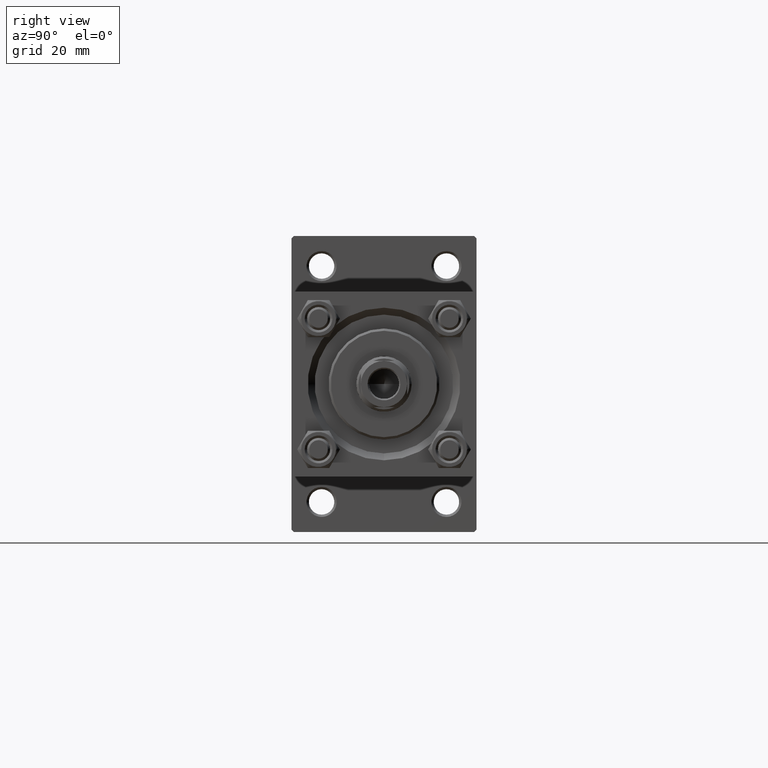
[diagram: clean part render]
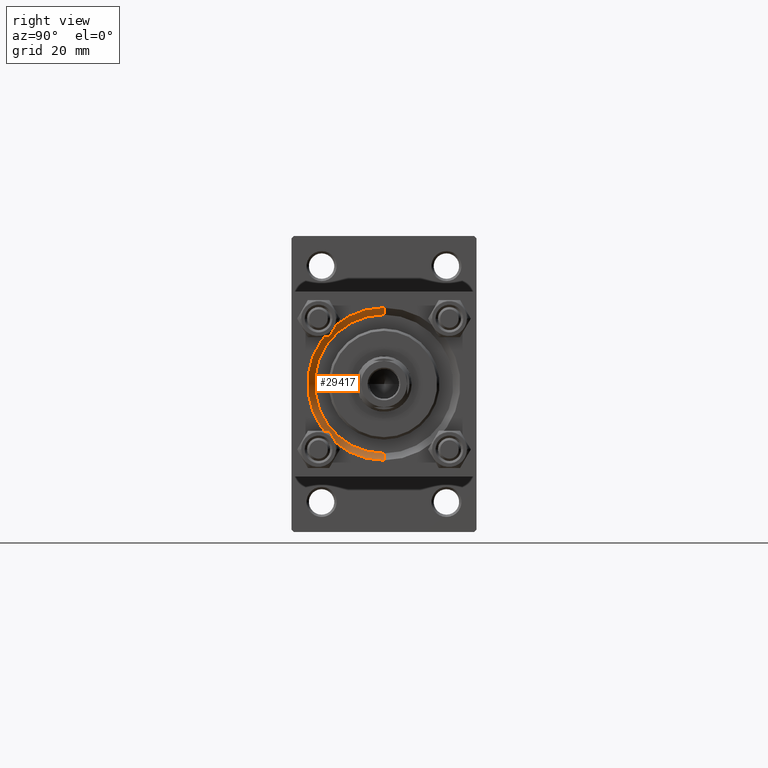
[diagram: same view with one face highlighted and labeled with its STEP entity id]
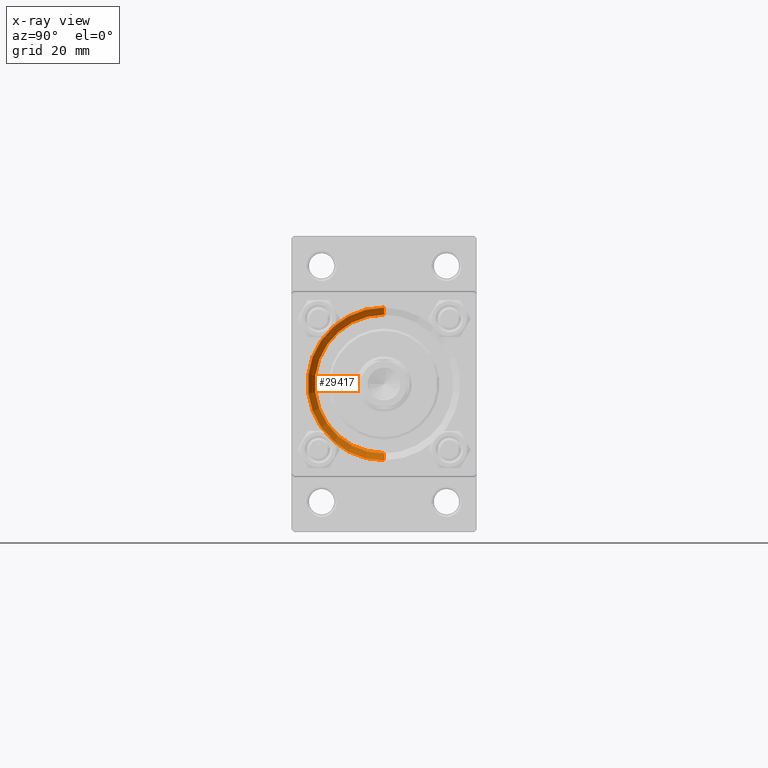
[diagram: x-ray of the same camera — body ghosted, the highlighted face saturated]
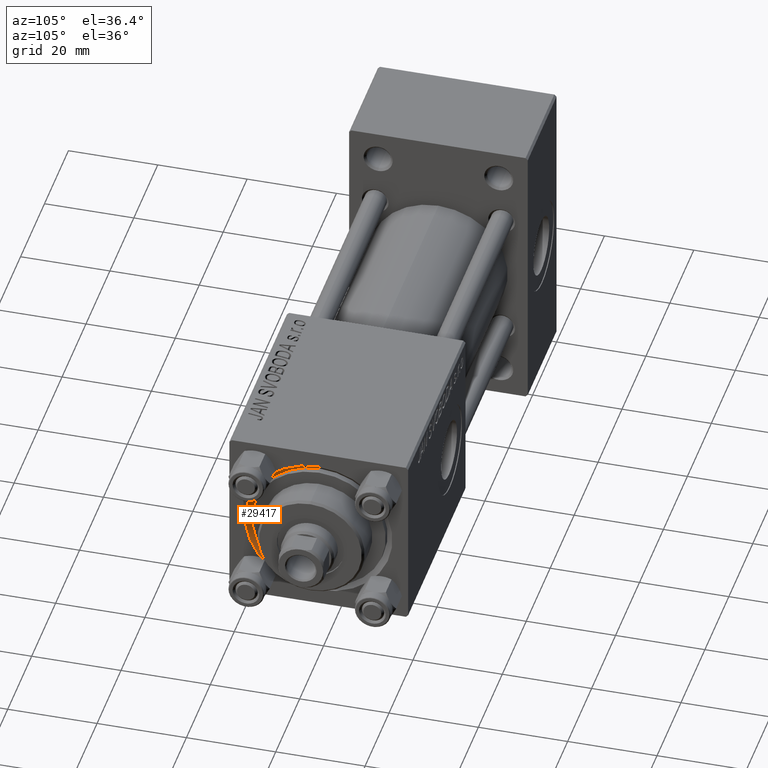
[diagram: same view with one face highlighted and labeled with its STEP entity id]
A machine part, right view. The second image highlights one B-rep face of the part: STEP entity #29417.
The next image is the same camera in x-ray: the body ghosted, the highlighted face saturated — about 0% of this face is hidden behind the body in this view.
A second angle (auxiliary view) of the same face is appended — the face is thin or edge-on in the first view.
In plain terms, the highlighted conical surface has half-angle 45 deg.
Its self-contained STEP definition (entity closure, byte-faithful):
#4661 = LINE ( 'NONE', #5165, #29906 ) ;
#5165 = CARTESIAN_POINT ( 'NONE',  ( 122.5000000000000000, 0.000000000000000000, -15.00000000000000000 ) ) ;
#7498 = VERTEX_POINT ( 'NONE', #7843 ) ;
#7843 = CARTESIAN_POINT ( 'NONE',  ( 122.5000000000000000, 1.836970198721029589E-15, 15.00000000000000000 ) ) ;
#7931 = FACE_OUTER_BOUND ( 'NONE', #8432, .T. ) ;
#8432 = EDGE_LOOP ( 'NONE', ( #33343, #33894, #37217, #16447 ) ) ;
#10028 = DIRECTION ( 'NONE',  ( 0.000000000000000000, 0.000000000000000000, -1.000000000000000000 ) ) ;
#11680 = DIRECTION ( 'NONE',  ( 1.000000000000000000, 0.000000000000000000, 0.000000000000000000 ) ) ;
#11727 = CARTESIAN_POINT ( 'NONE',  ( 122.5000000000000000, 0.000000000000000000, 0.000000000000000000 ) ) ;
#12030 = DIRECTION ( 'NONE',  ( 0.7071067811865507924, 8.659560562354892183E-17, 0.7071067811865441310 ) ) ;
#13325 = CARTESIAN_POINT ( 'NONE',  ( 124.0000000000000000, 0.000000000000000000, -16.49999999999998579 ) ) ;
#13739 = CIRCLE ( 'NONE', #41947, 15.00000000000000000 ) ;
#13962 = EDGE_CURVE ( 'NONE', #7498, #22268, #13739, .T. ) ;
#16447 = ORIENTED_EDGE ( 'NONE', *, *, #48648, .F. ) ;
#17389 = AXIS2_PLACEMENT_3D ( 'NONE', #11727, #34967, #10028 ) ;
#18998 = CARTESIAN_POINT ( 'NONE',  ( 122.5000000000000000, 0.000000000000000000, 0.000000000000000000 ) ) ;
#22268 = VERTEX_POINT ( 'NONE', #41607 ) ;
#22284 = DIRECTION ( 'NONE',  ( 0.000000000000000000, 0.000000000000000000, 1.000000000000000000 ) ) ;
#24995 = AXIS2_PLACEMENT_3D ( 'NONE', #35995, #27496, #27748 ) ;
#27435 = LINE ( 'NONE', #46618, #48352 ) ;
#27496 = DIRECTION ( 'NONE',  ( -1.000000000000000000, -0.000000000000000000, -0.000000000000000000 ) ) ;
#27748 = DIRECTION ( 'NONE',  ( 0.000000000000000000, 0.000000000000000000, 1.000000000000000000 ) ) ;
#29417 = ADVANCED_FACE ( 'NONE', ( #7931 ), #45592, .F. ) ;
#29906 = VECTOR ( 'NONE', #35985, 1000.000000000000114 ) ;
#33343 = ORIENTED_EDGE ( 'NONE', *, *, #13962, .F. ) ;
#33894 = ORIENTED_EDGE ( 'NONE', *, *, #47291, .T. ) ;
#34967 = DIRECTION ( 'NONE',  ( 1.000000000000000000, 0.000000000000000000, 0.000000000000000000 ) ) ;
#35985 = DIRECTION ( 'NONE',  ( 0.7071067811865507924, 0.000000000000000000, -0.7071067811865441310 ) ) ;
#35995 = CARTESIAN_POINT ( 'NONE',  ( 124.0000000000000000, 0.000000000000000000, 0.000000000000000000 ) ) ;
#37217 = ORIENTED_EDGE ( 'NONE', *, *, #46932, .F. ) ;
#41108 = CIRCLE ( 'NONE', #24995, 16.49999999999998579 ) ;
#41607 = CARTESIAN_POINT ( 'NONE',  ( 122.5000000000000000, 0.000000000000000000, -15.00000000000000000 ) ) ;
#41947 = AXIS2_PLACEMENT_3D ( 'NONE', #18998, #11680, #22284 ) ;
#42235 = VERTEX_POINT ( 'NONE', #13325 ) ;
#42777 = VERTEX_POINT ( 'NONE', #43432 ) ;
#43432 = CARTESIAN_POINT ( 'NONE',  ( 124.0000000000000000, 2.020667218593131128E-15, 16.49999999999998579 ) ) ;
#45592 = CONICAL_SURFACE ( 'NONE', #17389, 15.00000000000000000, 0.7853981633974437271 ) ;
#46618 = CARTESIAN_POINT ( 'NONE',  ( 122.5000000000000000, 1.836970198721029589E-15, 15.00000000000000000 ) ) ;
#46932 = EDGE_CURVE ( 'NONE', #42235, #42777, #41108, .T. ) ;
#47291 = EDGE_CURVE ( 'NONE', #7498, #42777, #27435, .T. ) ;
#48352 = VECTOR ( 'NONE', #12030, 1000.000000000000114 ) ;
#48648 = EDGE_CURVE ( 'NONE', #22268, #42235, #4661, .T. ) ;